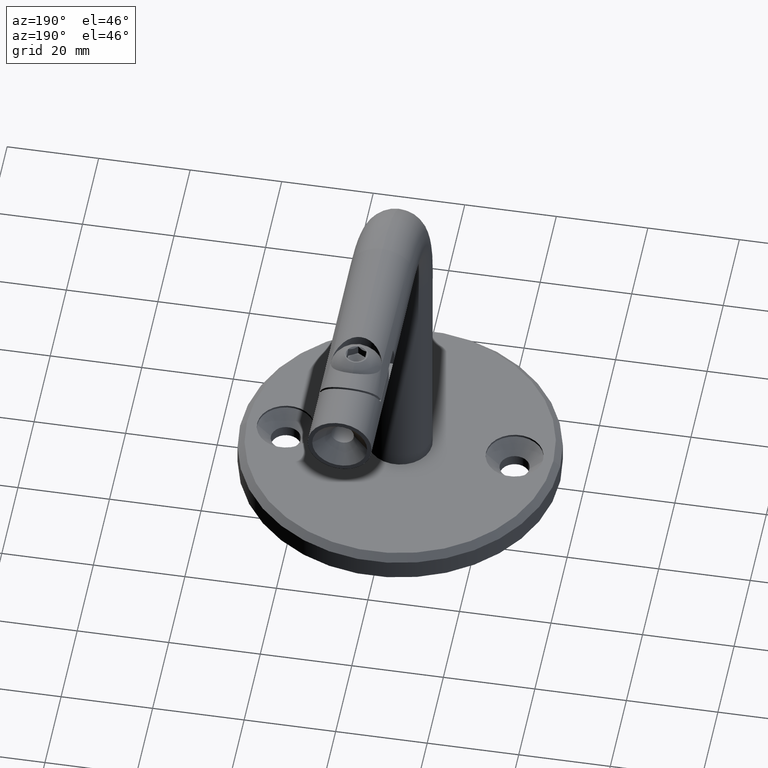
[diagram: clean part render]
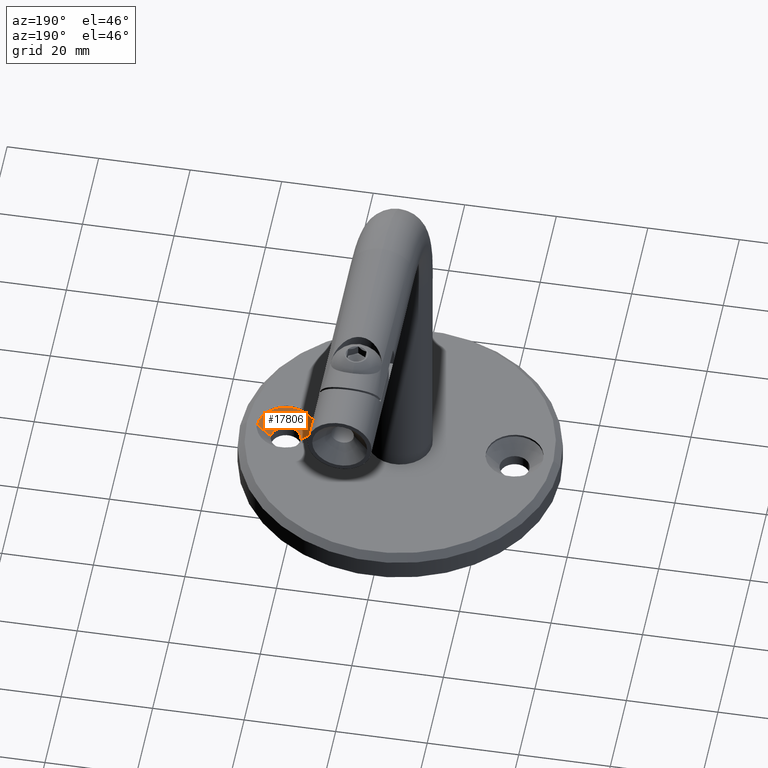
[diagram: same view with one face highlighted and labeled with its STEP entity id]
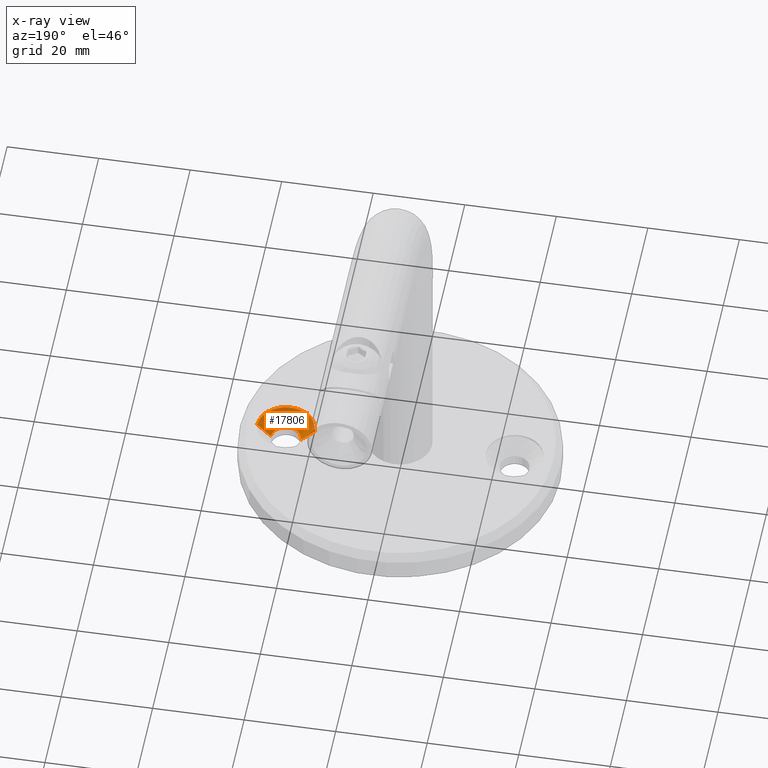
[diagram: x-ray of the same camera — body ghosted, the highlighted face saturated]
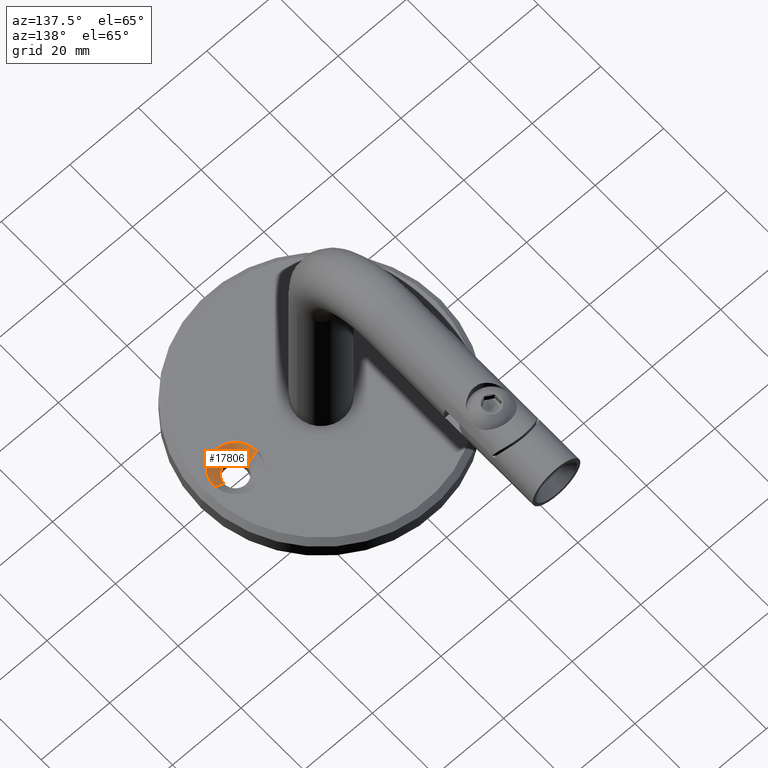
[diagram: same view with one face highlighted and labeled with its STEP entity id]
A machine part, auxiliary view. The second image highlights one B-rep face of the part: STEP entity #17806.
The next image is the same camera in x-ray: the body ghosted, the highlighted face saturated — about 4% of this face is hidden behind the body in this view.
A second angle (auxiliary view) of the same face is appended — the face is thin or edge-on in the first view.
In plain terms, the highlighted conical surface has half-angle 45 deg.
Its self-contained STEP definition (entity closure, byte-faithful):
#79 = CARTESIAN_POINT ( 'NONE',  ( 18.75000000000000355, 7.654042494670955634E-16, 5.500000000000000888 ) ) ;
#1317 = DIRECTION ( 'NONE',  ( 1.000000000000000000, 0.000000000000000000, 0.000000000000000000 ) ) ;
#1358 = CIRCLE ( 'NONE', #10722, 3.249999999999999556 ) ;
#2865 = AXIS2_PLACEMENT_3D ( 'NONE', #3283, #16974, #18673 ) ;
#3126 = LINE ( 'NONE', #16530, #21547 ) ;
#3283 = CARTESIAN_POINT ( 'NONE',  ( 25.00000000000000000, 0.000000000000000000, 5.500000000000000888 ) ) ;
#3485 = ORIENTED_EDGE ( 'NONE', *, *, #9835, .F. ) ;
#4444 = CARTESIAN_POINT ( 'NONE',  ( 25.00000000000000000, 0.000000000000000000, 2.500000000000000888 ) ) ;
#4446 = EDGE_CURVE ( 'NONE', #15783, #14971, #19049, .T. ) ;
#5635 = CARTESIAN_POINT ( 'NONE',  ( 28.25000000000000000, 0.000000000000000000, 2.500000000000000888 ) ) ;
#9153 = VECTOR ( 'NONE', #19527, 1000.000000000000000 ) ;
#9835 = EDGE_CURVE ( 'NONE', #10167, #18418, #1358, .T. ) ;
#10167 = VERTEX_POINT ( 'NONE', #17370 ) ;
#10722 = AXIS2_PLACEMENT_3D ( 'NONE', #4444, #11586, #1317 ) ;
#11419 = CONICAL_SURFACE ( 'NONE', #2865, 6.249999999999998224, 0.7853981633974482790 ) ;
#11586 = DIRECTION ( 'NONE',  ( -0.000000000000000000, -0.000000000000000000, 1.000000000000000000 ) ) ;
#11957 = FACE_OUTER_BOUND ( 'NONE', #12065, .T. ) ;
#12065 = EDGE_LOOP ( 'NONE', ( #3485, #19346, #19517, #13021 ) ) ;
#13021 = ORIENTED_EDGE ( 'NONE', *, *, #16941, .F. ) ;
#14971 = VERTEX_POINT ( 'NONE', #19361 ) ;
#15783 = VERTEX_POINT ( 'NONE', #79 ) ;
#16530 = CARTESIAN_POINT ( 'NONE',  ( 31.25000000000000000, 0.000000000000000000, 5.500000000000000888 ) ) ;
#16617 = CARTESIAN_POINT ( 'NONE',  ( 25.00000000000000000, 0.000000000000000000, 5.500000000000000888 ) ) ;
#16941 = EDGE_CURVE ( 'NONE', #18418, #14971, #3126, .T. ) ;
#16974 = DIRECTION ( 'NONE',  ( -0.000000000000000000, -0.000000000000000000, 1.000000000000000000 ) ) ;
#17370 = CARTESIAN_POINT ( 'NONE',  ( 21.75000000000000355, 3.980102097228897245E-16, 2.500000000000000888 ) ) ;
#17806 = ADVANCED_FACE ( 'NONE', ( #11957 ), #11419, .F. ) ;
#17898 = CARTESIAN_POINT ( 'NONE',  ( 18.75000000000000355, 7.654042494670955634E-16, 5.500000000000000888 ) ) ;
#18256 = DIRECTION ( 'NONE',  ( 0.7071067811865474617, 0.000000000000000000, 0.7071067811865475727 ) ) ;
#18263 = LINE ( 'NONE', #17898, #9153 ) ;
#18418 = VERTEX_POINT ( 'NONE', #5635 ) ;
#18558 = DIRECTION ( 'NONE',  ( -0.000000000000000000, -0.000000000000000000, 1.000000000000000000 ) ) ;
#18673 = DIRECTION ( 'NONE',  ( 1.000000000000000000, 0.000000000000000000, 0.000000000000000000 ) ) ;
#19049 = CIRCLE ( 'NONE', #20380, 6.249999999999998224 ) ;
#19346 = ORIENTED_EDGE ( 'NONE', *, *, #22079, .T. ) ;
#19361 = CARTESIAN_POINT ( 'NONE',  ( 31.25000000000000000, 0.000000000000000000, 5.500000000000000888 ) ) ;
#19517 = ORIENTED_EDGE ( 'NONE', *, *, #4446, .T. ) ;
#19527 = DIRECTION ( 'NONE',  ( -0.7071067811865474617, 8.659560562354931626E-17, 0.7071067811865475727 ) ) ;
#20337 = DIRECTION ( 'NONE',  ( 1.000000000000000000, 0.000000000000000000, 0.000000000000000000 ) ) ;
#20380 = AXIS2_PLACEMENT_3D ( 'NONE', #16617, #18558, #20337 ) ;
#21547 = VECTOR ( 'NONE', #18256, 1000.000000000000000 ) ;
#22079 = EDGE_CURVE ( 'NONE', #10167, #15783, #18263, .T. ) ;